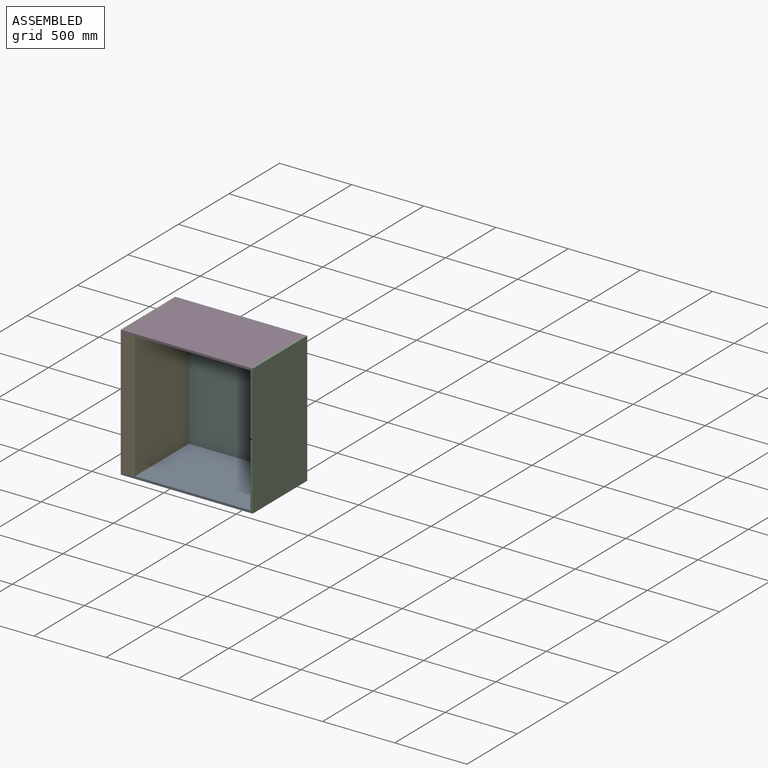
[diagram: assembled view]
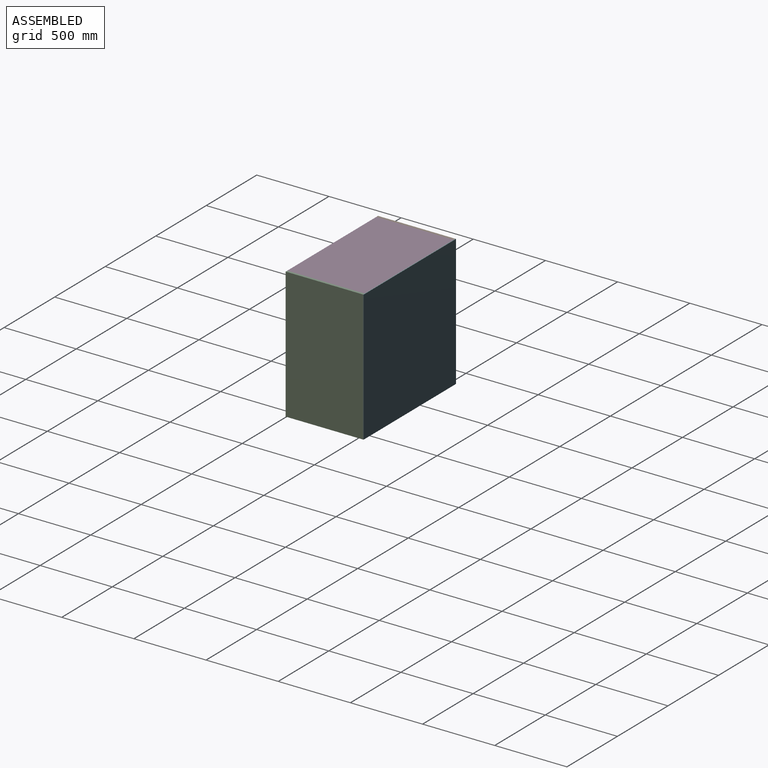
[diagram: assembled view, second angle]
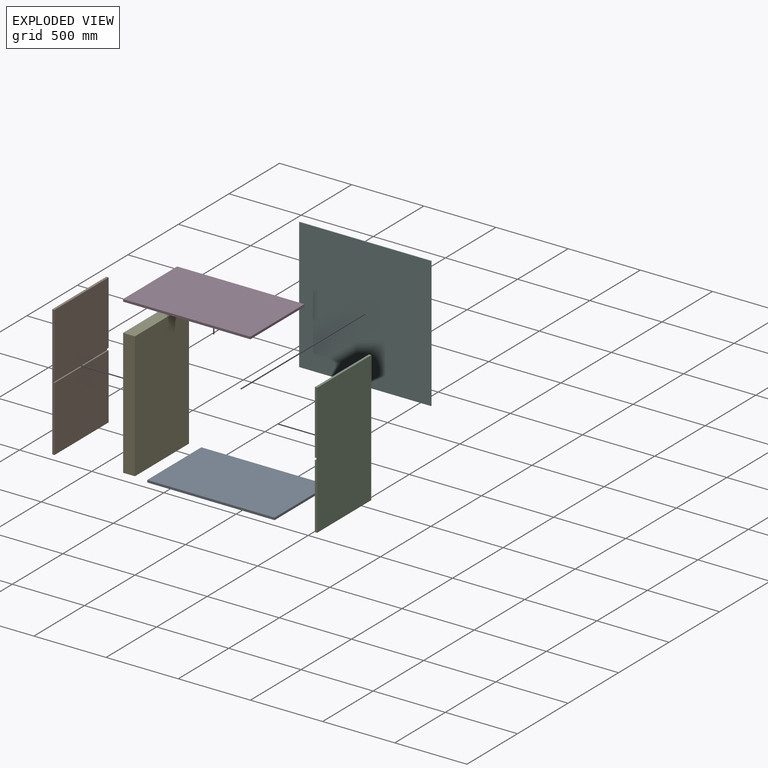
[diagram: exploded view]
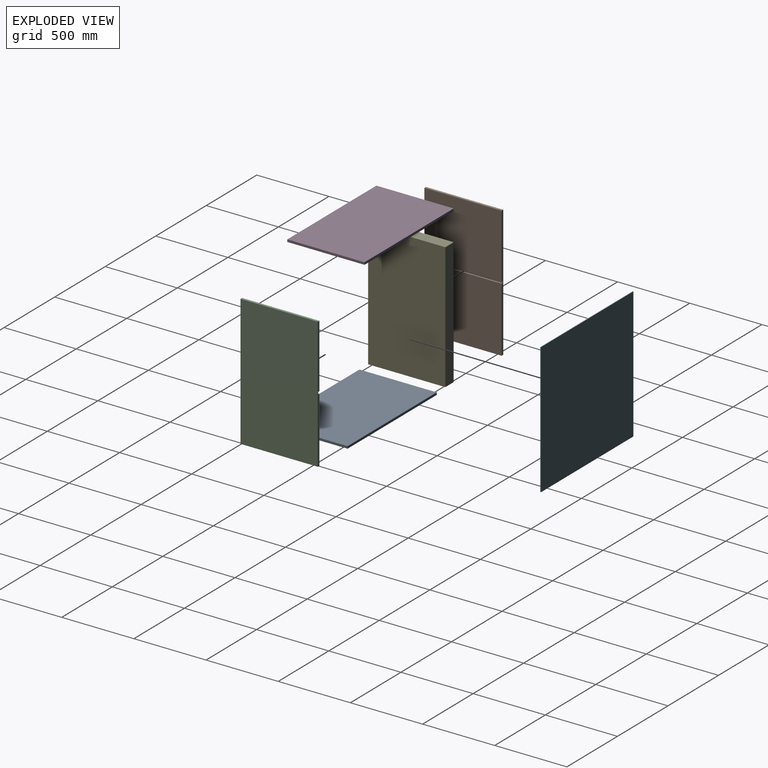
[diagram: exploded view, second angle]
ASSEMBLY  parts=6 mates=4
PART A: 6 faces, bbox 882x535x16 mm
  f0: plane 882x16mm, normal (0,1,0), area 14112mm2, adj f1,f3,f4,f5
  f1: plane 535x16mm, normal (-1,0,0), area 8560mm2, adj f0,f2,f4,f5
  f2: plane 882x16mm, normal (0,-1,0), area 14112mm2, adj f1,f3,f4,f5
  f3: plane 535x16mm, normal (1,0,0), area 8560mm2, adj f0,f2,f4,f5
  f4: plane 882x535mm, normal (0,0,1), area 471870mm2, adj f0,f1,f2,f3
  f5: plane 882x535mm, normal (0,0,-1), area 471870mm2, adj f0,f1,f2,f3
PART B: 10 faces, bbox 16x535x908 mm
  f0: plane 535x441mm, normal (-1,0,0), area 235935mm2, adj f1,f2,f3,f7
  f1: plane 908x16mm, normal (0,1,0), area 14368mm2, adj f0,f2,f4,f5,f6,f7,f8,f9
  f2: plane 535x16mm, normal (0,0,1), area 8560mm2, adj f0,f1,f3,f5
  f3: plane 908x16mm, normal (0,-1,0), area 14368mm2, adj f0,f2,f4,f5,f6,f7,f8,f9
  f4: plane 535x16mm, normal (0,0,-1), area 8560mm2, adj f1,f3,f5,f6
  f5: plane 908x535mm, normal (1,0,0), area 485780mm2, adj f1,f2,f3,f4
  f6: plane 535x451mm, normal (-1,0,0), area 241285mm2, adj f1,f3,f4,f8
  f7: plane 535x10mm, normal (0,0,-1), area 5350mm2, adj f0,f1,f3,f9
  f8: plane 535x10mm, normal (0,0,1), area 5350mm2, adj f1,f3,f6,f9
  f9: plane 535x16mm, normal (-1,0,0), area 8560mm2, adj f1,f3,f7,f8
PART C: same geometry as B
PART D: same geometry as A
PART E: 6 faces, bbox 82x535x876 mm
  f0: plane 876x535mm, normal (-1,0,0), area 468660mm2, adj f1,f3,f4,f5
  f1: plane 535x82mm, normal (0,0,-1), area 43870mm2, adj f0,f2,f4,f5
  f2: plane 876x535mm, normal (1,0,0), area 468660mm2, adj f1,f3,f4,f5
  f3: plane 535x82mm, normal (0,0,1), area 43870mm2, adj f0,f2,f4,f5
  f4: plane 876x82mm, normal (0,-1,0), area 71832mm2, adj f0,f1,f2,f3
  f5: plane 876x82mm, normal (0,1,0), area 71832mm2, adj f0,f1,f2,f3
PART F: 6 faces, bbox 5x914x908 mm
  f0: plane 914x5mm, normal (0,0,1), area 4570mm2, adj f1,f3,f4,f5
  f1: plane 908x5mm, normal (0,-1,0), area 4540mm2, adj f0,f2,f4,f5
  f2: plane 914x5mm, normal (0,0,-1), area 4570mm2, adj f1,f3,f4,f5
  f3: plane 908x5mm, normal (0,1,0), area 4540mm2, adj f0,f2,f4,f5
  f4: plane 914x908mm, normal (1,0,0), area 829912mm2, adj f0,f1,f2,f3
  f5: plane 914x908mm, normal (-1,0,0), area 829912mm2, adj f0,f1,f2,f3
PLACE A t=(125.91,-227.55,-281.53)mm
PLACE B rot(axis=(0,0,1),180deg) t=(-297.63,-221.12,6.22)mm
PLACE C rot(axis=(0,0,-1),0deg) t=(584.37,-201.25,6.22)mm
PLACE D rot(axis=(0,0,-1),0deg) t=(125.91,-227.55,610.47)mm
PLACE E t=(-237.5,56.31,3.43)mm
PLACE F rot(axis=(0,0,1),90deg) t=(145.83,56.31,188.06)mm
MATE fastened B.f6 <-> A.f1  axis (1,0,0) through (-297.63,56.31,-281.53)mm
MATE fastened D.f3 <-> C.f0  axis (1,0,0) through (584.37,56.31,626.47)mm
MATE fastened E.f1 <-> A.f4  axis (0,0,1) through (-297.63,-478.69,-265.53)mm
MATE fastened F.f5 <-> C.f1  axis (0,-1,0) through (600.37,56.31,626.47)mm
